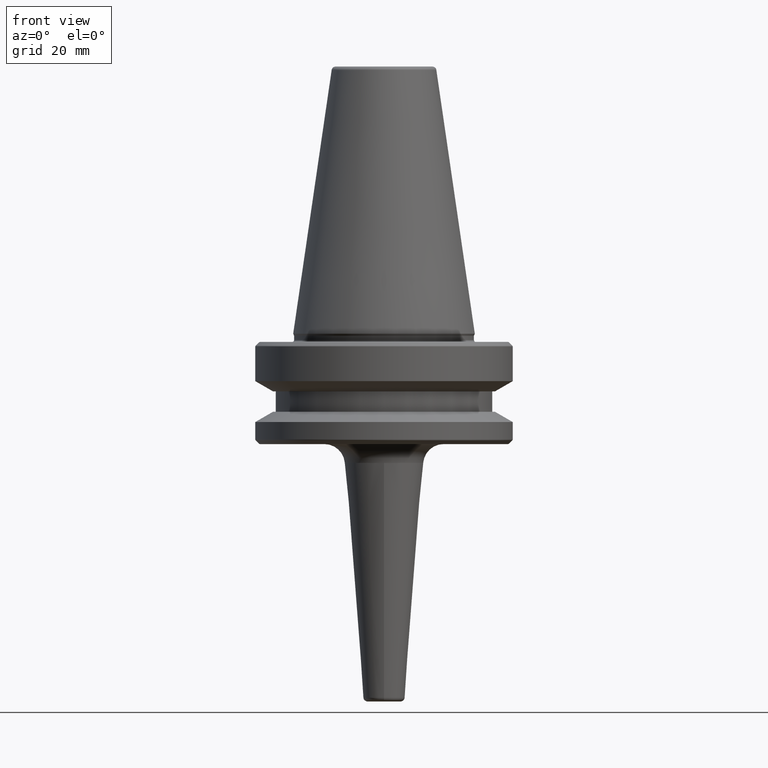
[diagram: clean part render]
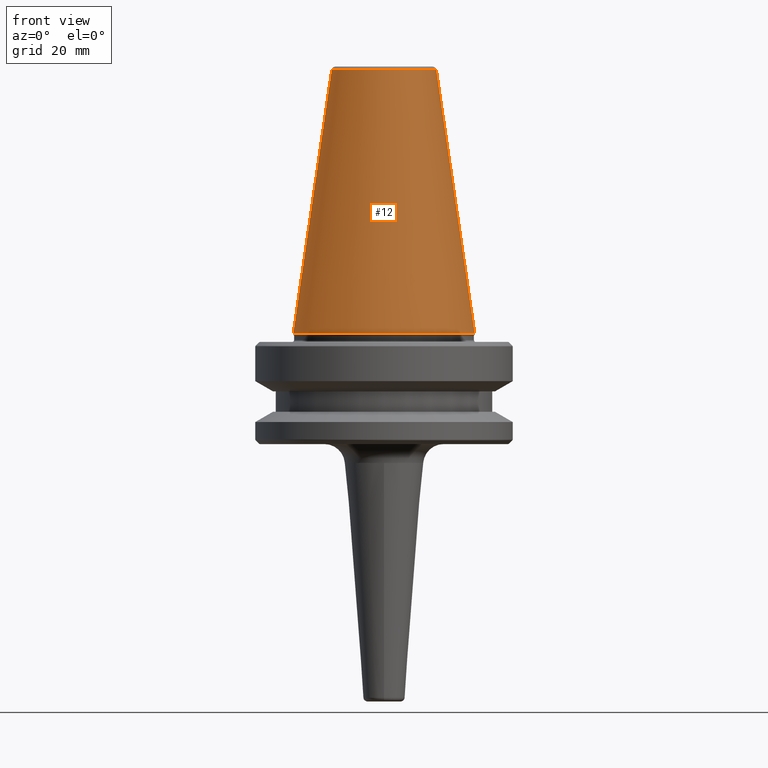
[diagram: same view with one face highlighted and labeled with its STEP entity id]
A machine part, front view. The second image highlights one B-rep face of the part: STEP entity #12.
In plain terms, the highlighted conical surface has half-angle 8.297 deg.
Its self-contained STEP definition (entity closure, byte-faithful):
#10 = EDGE_CURVE ( 'NONE', #981, #415, #694, .T. ) ;
#12 = ADVANCED_FACE ( 'NONE', ( #217 ), #892, .T. ) ;
#34 = EDGE_CURVE ( 'NONE', #803, #981, #158, .T. ) ;
#37 = EDGE_CURVE ( 'NONE', #314, #415, #368, .T. ) ;
#57 = CARTESIAN_POINT ( 'NONE',  ( 0.0000000000000000000, 0.0000000000000000000, 64.54430822726730800 ) ) ;
#60 = CARTESIAN_POINT ( 'NONE',  ( -12.81219950706224800, 0.0000000000000000000, 64.54430822726730800 ) ) ;
#69 = DIRECTION ( 'NONE',  ( 0.0000000000000000000, 0.0000000000000000000, -1.000000000000000000 ) ) ;
#158 = LINE ( 'NONE', #60, #613 ) ;
#183 = DIRECTION ( 'NONE',  ( -1.000000000000000000, 0.0000000000000000000, 0.0000000000000000000 ) ) ;
#214 = DIRECTION ( 'NONE',  ( -0.0000000000000000000, -0.0000000000000000000, 1.000000000000000000 ) ) ;
#217 = FACE_OUTER_BOUND ( 'NONE', #655, .T. ) ;
#249 = AXIS2_PLACEMENT_3D ( 'NONE', #1180, #528, #1085 ) ;
#305 = CARTESIAN_POINT ( 'NONE',  ( -22.22500000000000500, 2.721777511104993200E-015, 0.0000000000000000000 ) ) ;
#314 = VERTEX_POINT ( 'NONE', #375 ) ;
#368 = LINE ( 'NONE', #612, #1078 ) ;
#369 = ORIENTED_EDGE ( 'NONE', *, *, #37, .F. ) ;
#375 = CARTESIAN_POINT ( 'NONE',  ( 12.81219950706224800, 2.145409711370550300E-015, 64.54430822726730800 ) ) ;
#381 = ORIENTED_EDGE ( 'NONE', *, *, #761, .F. ) ;
#415 = VERTEX_POINT ( 'NONE', #1164 ) ;
#467 = ORIENTED_EDGE ( 'NONE', *, *, #10, .T. ) ;
#485 = CARTESIAN_POINT ( 'NONE',  ( -12.81219950706224800, 0.0000000000000000000, 64.54430822726730800 ) ) ;
#528 = DIRECTION ( 'NONE',  ( -0.0000000000000000000, -0.0000000000000000000, 1.000000000000000000 ) ) ;
#612 = CARTESIAN_POINT ( 'NONE',  ( 12.81219950706224800, 1.569041911636107800E-015, 64.54430822726730800 ) ) ;
#613 = VECTOR ( 'NONE', #706, 1000.000000000000000 ) ;
#655 = EDGE_LOOP ( 'NONE', ( #369, #381, #802, #467 ) ) ;
#694 = CIRCLE ( 'NONE', #249, 22.22500000000000500 ) ;
#701 = CIRCLE ( 'NONE', #1105, 12.81219950706224800 ) ;
#706 = DIRECTION ( 'NONE',  ( -0.1443082272673071000, 0.0000000000000000000, -0.9895327864921743500 ) ) ;
#736 = CARTESIAN_POINT ( 'NONE',  ( 0.0000000000000000000, 0.0000000000000000000, 64.54430822726730800 ) ) ;
#761 = EDGE_CURVE ( 'NONE', #803, #314, #701, .T. ) ;
#802 = ORIENTED_EDGE ( 'NONE', *, *, #34, .T. ) ;
#803 = VERTEX_POINT ( 'NONE', #485 ) ;
#843 = DIRECTION ( 'NONE',  ( 1.000000000000000000, 0.0000000000000000000, 0.0000000000000000000 ) ) ;
#892 = CONICAL_SURFACE ( 'NONE', #1042, 12.81219950706224800, 0.1448138465474191100 ) ;
#981 = VERTEX_POINT ( 'NONE', #305 ) ;
#1042 = AXIS2_PLACEMENT_3D ( 'NONE', #57, #69, #183 ) ;
#1078 = VECTOR ( 'NONE', #1184, 1000.000000000000000 ) ;
#1085 = DIRECTION ( 'NONE',  ( 1.000000000000000000, 0.0000000000000000000, 0.0000000000000000000 ) ) ;
#1105 = AXIS2_PLACEMENT_3D ( 'NONE', #736, #214, #843 ) ;
#1164 = CARTESIAN_POINT ( 'NONE',  ( 22.22500000000000500, 0.0000000000000000000, 0.0000000000000000000 ) ) ;
#1180 = CARTESIAN_POINT ( 'NONE',  ( 0.0000000000000000000, 0.0000000000000000000, 0.0000000000000000000 ) ) ;
#1184 = DIRECTION ( 'NONE',  ( 0.1443082272673071000, 1.767266086135364600E-017, -0.9895327864921743500 ) ) ;